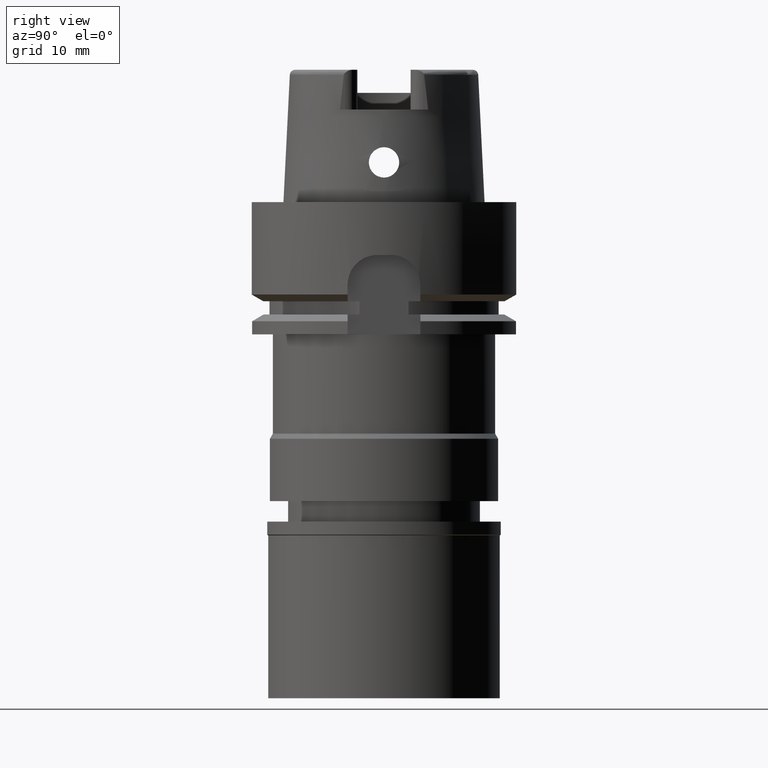
[diagram: clean part render]
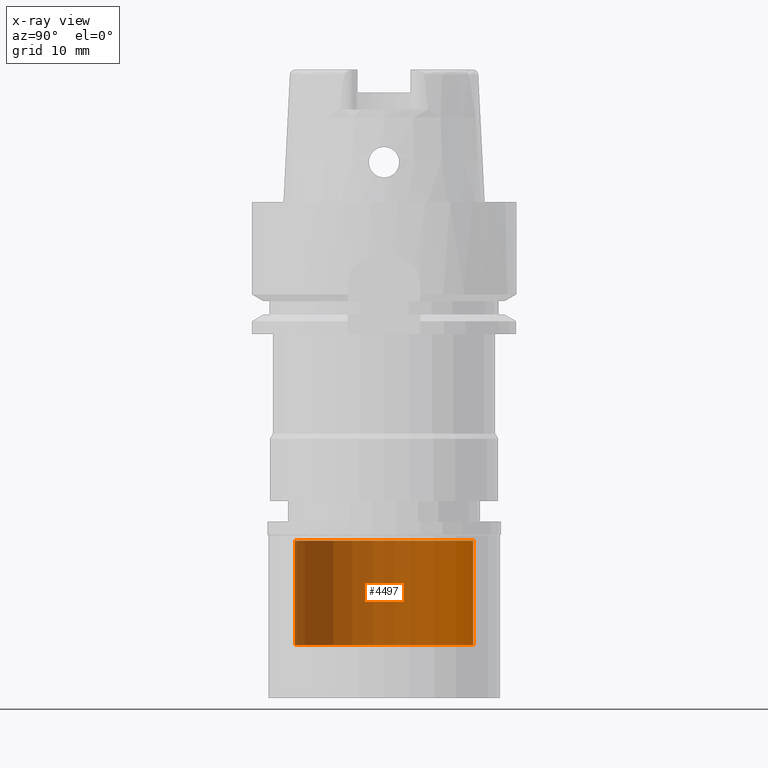
[diagram: x-ray — body ghosted, one internal face saturated and labeled with its STEP entity id]
A machine part, right view, then the same camera in x-ray: the body is ghosted and one INTERNAL B-rep face — a face not visible from any outside direction — is saturated and labeled: STEP entity #4497.
In plain terms, the highlighted cylindrical surface (partial cylindrical patch) has radius 13.5 mm, axis along (0, 0, -1).
Its self-contained STEP definition (entity closure, byte-faithful):
#90 = AXIS2_PLACEMENT_3D ( 'NONE', #5369, #2149, #3388 ) ;
#113 = DIRECTION ( 'NONE',  ( 0.0000000000000000000, 0.0000000000000000000, -1.000000000000000000 ) ) ;
#404 = CARTESIAN_POINT ( 'NONE',  ( 0.0000000000000000000, 0.0000000000000000000, -18.70000000000000284 ) ) ;
#470 = ORIENTED_EDGE ( 'NONE', *, *, #2418, .T. ) ;
#490 = VERTEX_POINT ( 'NONE', #5262 ) ;
#498 = VECTOR ( 'NONE', #2082, 1000.000000000000000 ) ;
#524 = ORIENTED_EDGE ( 'NONE', *, *, #3919, .T. ) ;
#566 = FACE_OUTER_BOUND ( 'NONE', #625, .T. ) ;
#592 = CYLINDRICAL_SURFACE ( 'NONE', #2515, 13.50000000000000000 ) ;
#625 = EDGE_LOOP ( 'NONE', ( #524, #752, #470, #4728 ) ) ;
#752 = ORIENTED_EDGE ( 'NONE', *, *, #3779, .F. ) ;
#1097 = CARTESIAN_POINT ( 'NONE',  ( 0.0000000000000000000, -13.50000000000000000, -18.70000000000000284 ) ) ;
#1183 = CARTESIAN_POINT ( 'NONE',  ( 0.0000000000000000000, -13.50000000000000000, -18.70000000000000284 ) ) ;
#1584 = DIRECTION ( 'NONE',  ( 0.0000000000000000000, 0.0000000000000000000, 1.000000000000000000 ) ) ;
#1812 = EDGE_CURVE ( 'NONE', #3632, #4701, #2483, .T. ) ;
#1828 = AXIS2_PLACEMENT_3D ( 'NONE', #404, #113, #3821 ) ;
#2082 = DIRECTION ( 'NONE',  ( 0.0000000000000000000, 0.0000000000000000000, 1.000000000000000000 ) ) ;
#2149 = DIRECTION ( 'NONE',  ( 0.0000000000000000000, 0.0000000000000000000, 1.000000000000000000 ) ) ;
#2418 = EDGE_CURVE ( 'NONE', #2996, #3632, #5228, .T. ) ;
#2483 = LINE ( 'NONE', #4172, #498 ) ;
#2515 = AXIS2_PLACEMENT_3D ( 'NONE', #5192, #3093, #4777 ) ;
#2996 = VERTEX_POINT ( 'NONE', #1183 ) ;
#3093 = DIRECTION ( 'NONE',  ( 0.0000000000000000000, 0.0000000000000000000, -1.000000000000000000 ) ) ;
#3139 = CARTESIAN_POINT ( 'NONE',  ( 0.0000000000000000000, 13.50000000000000000, -18.70000000000000284 ) ) ;
#3211 = LINE ( 'NONE', #1097, #4186 ) ;
#3388 = DIRECTION ( 'NONE',  ( 0.0000000000000000000, 1.000000000000000000, 0.0000000000000000000 ) ) ;
#3632 = VERTEX_POINT ( 'NONE', #3139 ) ;
#3779 = EDGE_CURVE ( 'NONE', #2996, #490, #3211, .T. ) ;
#3821 = DIRECTION ( 'NONE',  ( 0.0000000000000000000, -1.000000000000000000, 0.0000000000000000000 ) ) ;
#3919 = EDGE_CURVE ( 'NONE', #4701, #490, #4372, .T. ) ;
#4172 = CARTESIAN_POINT ( 'NONE',  ( 0.0000000000000000000, 13.50000000000000000, -18.70000000000000284 ) ) ;
#4186 = VECTOR ( 'NONE', #1584, 1000.000000000000000 ) ;
#4372 = CIRCLE ( 'NONE', #90, 13.50000000000000000 ) ;
#4497 = ADVANCED_FACE ( 'NONE', ( #566 ), #592, .F. ) ;
#4560 = CARTESIAN_POINT ( 'NONE',  ( 0.0000000000000000000, 13.50000000000000000, -2.899999999999999911 ) ) ;
#4701 = VERTEX_POINT ( 'NONE', #4560 ) ;
#4728 = ORIENTED_EDGE ( 'NONE', *, *, #1812, .T. ) ;
#4777 = DIRECTION ( 'NONE',  ( 0.0000000000000000000, -1.000000000000000000, 0.0000000000000000000 ) ) ;
#5192 = CARTESIAN_POINT ( 'NONE',  ( 0.0000000000000000000, 0.0000000000000000000, 0.0000000000000000000 ) ) ;
#5228 = CIRCLE ( 'NONE', #1828, 13.50000000000000000 ) ;
#5262 = CARTESIAN_POINT ( 'NONE',  ( 0.0000000000000000000, -13.50000000000000000, -2.899999999999999911 ) ) ;
#5369 = CARTESIAN_POINT ( 'NONE',  ( 0.0000000000000000000, 0.0000000000000000000, -2.899999999999999911 ) ) ;